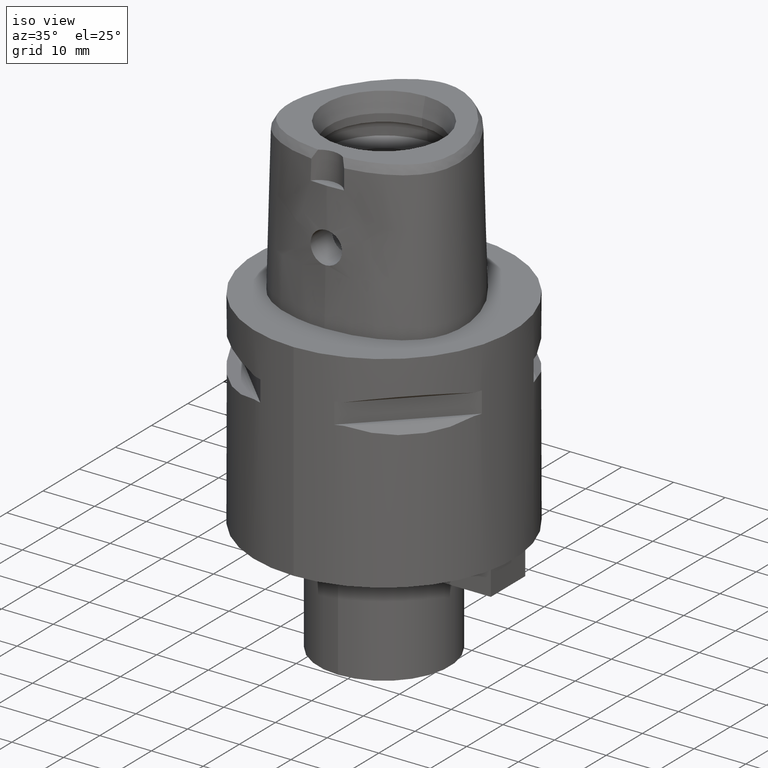
[diagram: clean part render]
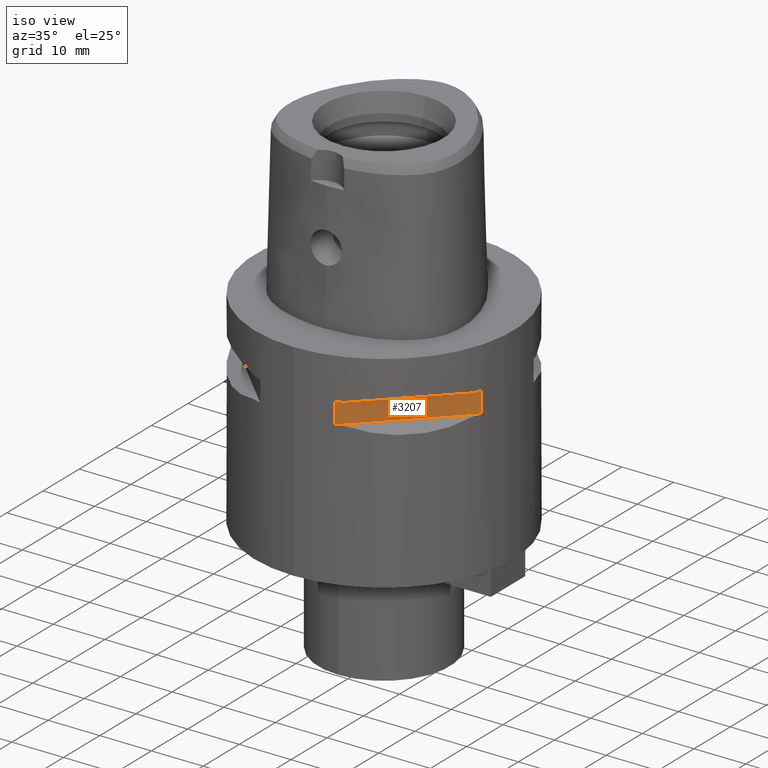
[diagram: same view with one face highlighted and labeled with its STEP entity id]
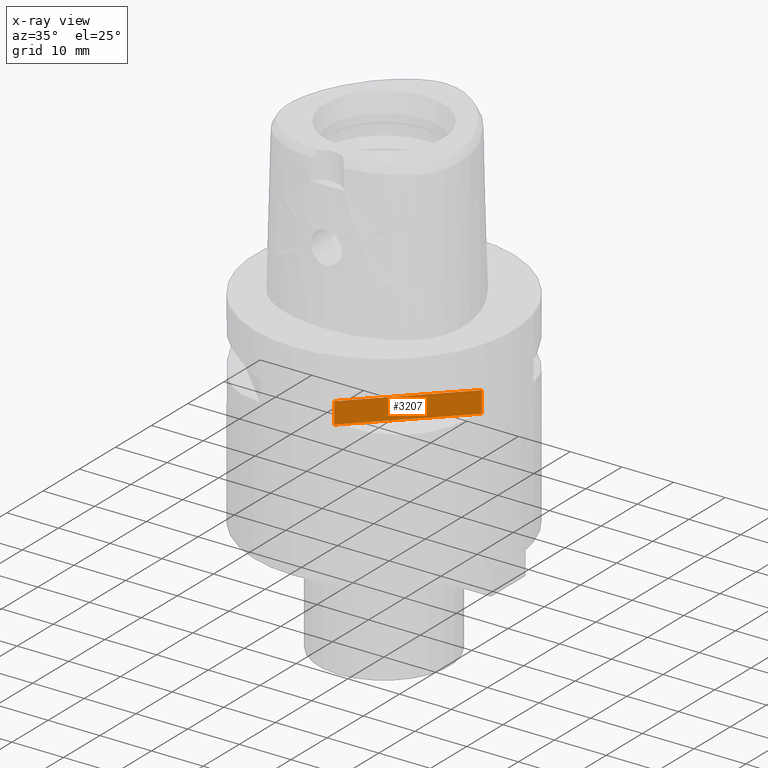
[diagram: x-ray of the same camera — body ghosted, the highlighted face saturated]
A machine part, iso view. The second image highlights one B-rep face of the part: STEP entity #3207.
The next image is the same camera in x-ray: the body ghosted, the highlighted face saturated — about 0% of this face is hidden behind the body in this view.
In plain terms, the highlighted planar face has unit normal (-0.7071, 0.7071, 0).
Its self-contained STEP definition (entity closure, byte-faithful):
#456=DIRECTION('',(0.E0,0.E0,-1.E0));
#457=VECTOR('',#456,4.1E0);
#458=CARTESIAN_POINT('',(7.159921374231E0,-2.395277699798E1,-7.95E0));
#459=LINE('',#458,#457);
#474=DIRECTION('',(0.E0,0.E0,1.E0));
#475=VECTOR('',#474,4.1E0);
#476=CARTESIAN_POINT('',(2.395277699798E1,-7.159921374231E0,-1.205E1));
#477=LINE('',#476,#475);
#1292=DIRECTION('',(7.071067811865E-1,7.071067811865E-1,0.E0));
#1293=VECTOR('',#1292,2.374868417407E1);
#1294=CARTESIAN_POINT('',(7.159921374231E0,-2.395277699798E1,-7.95E0));
#1295=LINE('',#1294,#1293);
#1315=DIRECTION('',(7.071067811865E-1,7.071067811865E-1,0.E0));
#1316=VECTOR('',#1315,2.374868417407E1);
#1317=CARTESIAN_POINT('',(7.159921374231E0,-2.395277699798E1,-1.205E1));
#1318=LINE('',#1317,#1316);
#1600=CARTESIAN_POINT('',(7.159921374235E0,-2.395277699798E1,-7.95E0));
#1601=VERTEX_POINT('',#1600);
#1602=CARTESIAN_POINT('',(7.159921374231E0,-2.395277699798E1,-1.205E1));
#1603=VERTEX_POINT('',#1602);
#1607=CARTESIAN_POINT('',(2.395277699798E1,-7.159921374235E0,-1.205E1));
#1608=VERTEX_POINT('',#1607);
#1609=CARTESIAN_POINT('',(2.395277699798E1,-7.159921374231E0,-7.95E0));
#1610=VERTEX_POINT('',#1609);
#3195=CARTESIAN_POINT('',(2.616295090390E1,-4.949747468306E0,-7.95E0));
#3196=DIRECTION('',(-7.071067811865E-1,7.071067811865E-1,0.E0));
#3197=DIRECTION('',(0.E0,0.E0,-1.E0));
#3198=AXIS2_PLACEMENT_3D('',#3195,#3196,#3197);
#3199=PLANE('',#3198);
#3200=ORIENTED_EDGE('',*,*,#2433,.F.);
#3202=ORIENTED_EDGE('',*,*,#3201,.F.);
#3203=ORIENTED_EDGE('',*,*,#2425,.F.);
#3204=ORIENTED_EDGE('',*,*,#3188,.T.);
#3205=EDGE_LOOP('',(#3200,#3202,#3203,#3204));
#3206=FACE_OUTER_BOUND('',#3205,.F.);
#2425=EDGE_CURVE('',#1601,#1603,#459,.T.);
#2433=EDGE_CURVE('',#1608,#1610,#477,.T.);
#3188=EDGE_CURVE('',#1601,#1610,#1295,.T.);
#3201=EDGE_CURVE('',#1603,#1608,#1318,.T.);
#3207=ADVANCED_FACE('',(#3206),#3199,.F.);